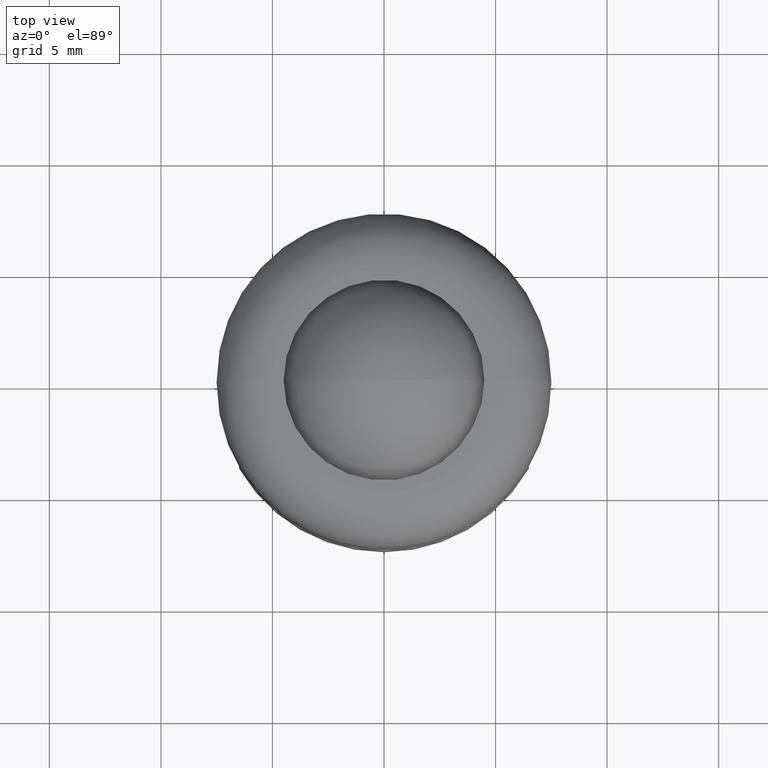
[diagram: clean part render]
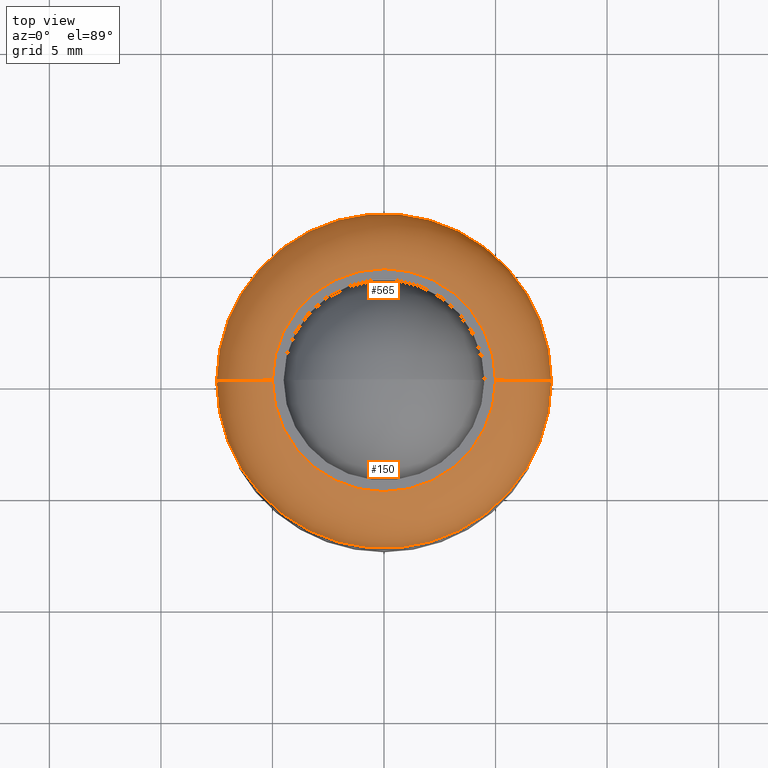
[diagram: same view with one multi-face feature highlighted, each face labeled with its STEP entity id]
A machine part, top view. The highlighted faces form ONE feature: a constant-radius fillet chain: 2 tangent blend faces with common blend radius 2.5 mm. The faces share edges in the B-rep.
Their STEP definitions:
[1] entity #565 (Torus):
#27 = DIRECTION ( 'NONE',  ( 0.0000000000000000000, 0.0000000000000000000, -1.000000000000000000 ) ) ;
#48 = CIRCLE ( 'NONE', #311, 7.500000000000000000 ) ;
#78 = CIRCLE ( 'NONE', #206, 2.500000000000000000 ) ;
#95 = VERTEX_POINT ( 'NONE', #268 ) ;
#158 = DIRECTION ( 'NONE',  ( -1.224646799147353200E-016, 1.000000000000000000, 0.0000000000000000000 ) ) ;
#178 = EDGE_LOOP ( 'NONE', ( #300, #606, #508, #541 ) ) ;
#195 = DIRECTION ( 'NONE',  ( -1.000000000000000000, -1.224646799147353200E-016, 0.0000000000000000000 ) ) ;
#206 = AXIS2_PLACEMENT_3D ( 'NONE', #913, #158, #195 ) ;
#230 = CARTESIAN_POINT ( 'NONE',  ( 5.000000000000000000, 7.654042494670956600E-016, 9.000000000000000000 ) ) ;
#231 = FACE_OUTER_BOUND ( 'NONE', #178, .T. ) ;
#264 = CARTESIAN_POINT ( 'NONE',  ( 0.0000000000000000000, 0.0000000000000000000, 6.500000000000000000 ) ) ;
#268 = CARTESIAN_POINT ( 'NONE',  ( -5.000000000000000000, 0.0000000000000000000, 9.000000000000000000 ) ) ;
#300 = ORIENTED_EDGE ( 'NONE', *, *, #876, .T. ) ;
#311 = AXIS2_PLACEMENT_3D ( 'NONE', #624, #780, #922 ) ;
#323 = CARTESIAN_POINT ( 'NONE',  ( -7.500000000000000000, 0.0000000000000000000, 6.500000000000000000 ) ) ;
#355 = TOROIDAL_SURFACE ( 'NONE', #551, 5.000000000000000000, 2.500000000000000000 ) ;
#369 = CIRCLE ( 'NONE', #564, 5.000000000000000000 ) ;
#373 = DIRECTION ( 'NONE',  ( 0.0000000000000000000, 0.0000000000000000000, -1.000000000000000000 ) ) ;
#401 = CIRCLE ( 'NONE', #423, 2.499999999999999600 ) ;
#405 = CARTESIAN_POINT ( 'NONE',  ( 7.500000000000000000, 9.184850993605147900E-016, 6.500000000000000000 ) ) ;
#423 = AXIS2_PLACEMENT_3D ( 'NONE', #604, #825, #680 ) ;
#425 = EDGE_CURVE ( 'NONE', #571, #810, #78, .T. ) ;
#508 = ORIENTED_EDGE ( 'NONE', *, *, #782, .F. ) ;
#541 = ORIENTED_EDGE ( 'NONE', *, *, #823, .F. ) ;
#551 = AXIS2_PLACEMENT_3D ( 'NONE', #264, #27, #894 ) ;
#564 = AXIS2_PLACEMENT_3D ( 'NONE', #814, #373, #892 ) ;
#565 = ADVANCED_FACE ( 'NONE', ( #231 ), #355, .T. ) ;
#571 = VERTEX_POINT ( 'NONE', #230 ) ;
#604 = CARTESIAN_POINT ( 'NONE',  ( -5.000000000000000000, 0.0000000000000000000, 6.500000000000000000 ) ) ;
#606 = ORIENTED_EDGE ( 'NONE', *, *, #425, .T. ) ;
#624 = CARTESIAN_POINT ( 'NONE',  ( 0.0000000000000000000, 0.0000000000000000000, 6.500000000000000000 ) ) ;
#666 = VERTEX_POINT ( 'NONE', #323 ) ;
#680 = DIRECTION ( 'NONE',  ( 0.0000000000000000000, 0.0000000000000000000, -1.000000000000000000 ) ) ;
#780 = DIRECTION ( 'NONE',  ( 0.0000000000000000000, 0.0000000000000000000, -1.000000000000000000 ) ) ;
#782 = EDGE_CURVE ( 'NONE', #666, #810, #48, .T. ) ;
#810 = VERTEX_POINT ( 'NONE', #405 ) ;
#814 = CARTESIAN_POINT ( 'NONE',  ( 0.0000000000000000000, 0.0000000000000000000, 9.000000000000000000 ) ) ;
#823 = EDGE_CURVE ( 'NONE', #95, #666, #401, .T. ) ;
#825 = DIRECTION ( 'NONE',  ( -0.0000000000000000000, -1.000000000000000000, -0.0000000000000000000 ) ) ;
#876 = EDGE_CURVE ( 'NONE', #95, #571, #369, .T. ) ;
#892 = DIRECTION ( 'NONE',  ( -1.000000000000000000, 0.0000000000000000000, 0.0000000000000000000 ) ) ;
#894 = DIRECTION ( 'NONE',  ( -1.000000000000000000, 0.0000000000000000000, 0.0000000000000000000 ) ) ;
#913 = CARTESIAN_POINT ( 'NONE',  ( 5.000000000000000000, 6.123233995736766300E-016, 6.500000000000000000 ) ) ;
#922 = DIRECTION ( 'NONE',  ( -1.000000000000000000, 0.0000000000000000000, 0.0000000000000000000 ) ) ;
[2] entity #150 (Torus):
#29 = DIRECTION ( 'NONE',  ( 0.0000000000000000000, 0.0000000000000000000, -1.000000000000000000 ) ) ;
#59 = ORIENTED_EDGE ( 'NONE', *, *, #823, .T. ) ;
#78 = CIRCLE ( 'NONE', #206, 2.500000000000000000 ) ;
#81 = AXIS2_PLACEMENT_3D ( 'NONE', #698, #29, #531 ) ;
#95 = VERTEX_POINT ( 'NONE', #268 ) ;
#129 = ORIENTED_EDGE ( 'NONE', *, *, #308, .T. ) ;
#150 = ADVANCED_FACE ( 'NONE', ( #456 ), #216, .T. ) ;
#158 = DIRECTION ( 'NONE',  ( -1.224646799147353200E-016, 1.000000000000000000, 0.0000000000000000000 ) ) ;
#195 = DIRECTION ( 'NONE',  ( -1.000000000000000000, -1.224646799147353200E-016, 0.0000000000000000000 ) ) ;
#206 = AXIS2_PLACEMENT_3D ( 'NONE', #913, #158, #195 ) ;
#214 = ORIENTED_EDGE ( 'NONE', *, *, #425, .F. ) ;
#216 = TOROIDAL_SURFACE ( 'NONE', #81, 5.000000000000000000, 2.500000000000000000 ) ;
#230 = CARTESIAN_POINT ( 'NONE',  ( 5.000000000000000000, 7.654042494670956600E-016, 9.000000000000000000 ) ) ;
#268 = CARTESIAN_POINT ( 'NONE',  ( -5.000000000000000000, 0.0000000000000000000, 9.000000000000000000 ) ) ;
#308 = EDGE_CURVE ( 'NONE', #571, #95, #385, .T. ) ;
#321 = DIRECTION ( 'NONE',  ( -1.000000000000000000, 0.0000000000000000000, 0.0000000000000000000 ) ) ;
#323 = CARTESIAN_POINT ( 'NONE',  ( -7.500000000000000000, 0.0000000000000000000, 6.500000000000000000 ) ) ;
#367 = AXIS2_PLACEMENT_3D ( 'NONE', #916, #546, #321 ) ;
#385 = CIRCLE ( 'NONE', #367, 5.000000000000000000 ) ;
#401 = CIRCLE ( 'NONE', #423, 2.499999999999999600 ) ;
#405 = CARTESIAN_POINT ( 'NONE',  ( 7.500000000000000000, 9.184850993605147900E-016, 6.500000000000000000 ) ) ;
#423 = AXIS2_PLACEMENT_3D ( 'NONE', #604, #825, #680 ) ;
#425 = EDGE_CURVE ( 'NONE', #571, #810, #78, .T. ) ;
#456 = FACE_OUTER_BOUND ( 'NONE', #504, .T. ) ;
#460 = ORIENTED_EDGE ( 'NONE', *, *, #737, .F. ) ;
#474 = DIRECTION ( 'NONE',  ( 0.0000000000000000000, 0.0000000000000000000, -1.000000000000000000 ) ) ;
#504 = EDGE_LOOP ( 'NONE', ( #214, #129, #59, #460 ) ) ;
#531 = DIRECTION ( 'NONE',  ( -1.000000000000000000, 0.0000000000000000000, 0.0000000000000000000 ) ) ;
#546 = DIRECTION ( 'NONE',  ( 0.0000000000000000000, 0.0000000000000000000, -1.000000000000000000 ) ) ;
#571 = VERTEX_POINT ( 'NONE', #230 ) ;
#604 = CARTESIAN_POINT ( 'NONE',  ( -5.000000000000000000, 0.0000000000000000000, 6.500000000000000000 ) ) ;
#666 = VERTEX_POINT ( 'NONE', #323 ) ;
#680 = DIRECTION ( 'NONE',  ( 0.0000000000000000000, 0.0000000000000000000, -1.000000000000000000 ) ) ;
#698 = CARTESIAN_POINT ( 'NONE',  ( 0.0000000000000000000, 0.0000000000000000000, 6.500000000000000000 ) ) ;
#702 = CARTESIAN_POINT ( 'NONE',  ( 0.0000000000000000000, 0.0000000000000000000, 6.500000000000000000 ) ) ;
#737 = EDGE_CURVE ( 'NONE', #810, #666, #933, .T. ) ;
#810 = VERTEX_POINT ( 'NONE', #405 ) ;
#823 = EDGE_CURVE ( 'NONE', #95, #666, #401, .T. ) ;
#825 = DIRECTION ( 'NONE',  ( -0.0000000000000000000, -1.000000000000000000, -0.0000000000000000000 ) ) ;
#913 = CARTESIAN_POINT ( 'NONE',  ( 5.000000000000000000, 6.123233995736766300E-016, 6.500000000000000000 ) ) ;
#914 = DIRECTION ( 'NONE',  ( -1.000000000000000000, 0.0000000000000000000, 0.0000000000000000000 ) ) ;
#916 = CARTESIAN_POINT ( 'NONE',  ( 0.0000000000000000000, 0.0000000000000000000, 9.000000000000000000 ) ) ;
#930 = AXIS2_PLACEMENT_3D ( 'NONE', #702, #474, #914 ) ;
#933 = CIRCLE ( 'NONE', #930, 7.500000000000000000 ) ;